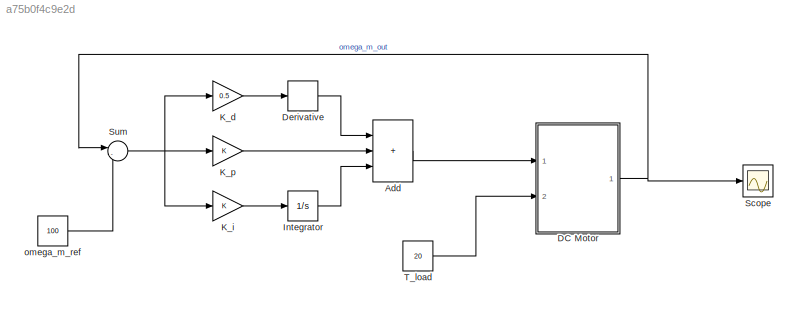
MODEL slx_a75b0f4c9e2d
KIND model
CONFIG AbsTol = auto
CONFIG EnableMultiTasking = off
CONFIG FixedStep = auto
CONFIG MaxStep = auto
CONFIG MinStep = auto
CONFIG RelTol = 1e-3
CONFIG SampleTimeConstraint = Unconstrained
CONFIG SolverName = VariableStepAuto
CONFIG StartTime = 0.0
CONFIG StopTime = 100
BLOCK [Sum] Add
  IconShape = rectangular
  Inputs = +++
  Ports = [3, 1]
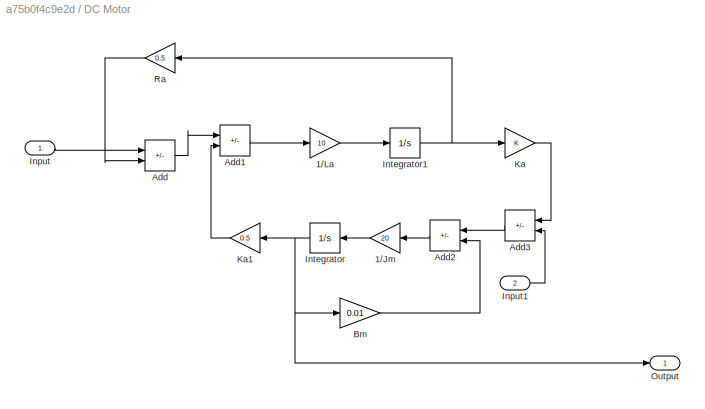
BLOCK [SubSystem] DC Motor
  Ports = [2, 1]
  RequestExecContextInheritance = off
BLOCK [Gain] DC Motor/1//Jm
  Gain = 20
  NameLocation = top
BLOCK [Gain] DC Motor/1//La
  Gain = 10
BLOCK [Sum] DC Motor/Add
  IconShape = rectangular
  Inputs = +-
  Ports = [2, 1]
BLOCK [Sum] DC Motor/Add1
  IconShape = rectangular
  Inputs = +-
  Ports = [2, 1]
BLOCK [Sum] DC Motor/Add2
  IconShape = rectangular
  Inputs = +-
  NameLocation = top
  Ports = [2, 1]
BLOCK [Sum] DC Motor/Add3
  IconShape = rectangular
  Inputs = +-
  NameLocation = top
  Ports = [2, 1]
BLOCK [Gain] DC Motor/Bm
  Gain = 0.01
BLOCK [Inport] DC Motor/Input
BLOCK [Inport] DC Motor/Input1
  Port = 2
BLOCK [Integrator] DC Motor/Integrator
  NameLocation = top
  Ports = [1, 1]
BLOCK [Integrator] DC Motor/Integrator1
  Ports = [1, 1]
BLOCK [Gain] DC Motor/Ka
BLOCK [Gain] DC Motor/Ka1
  Gain = 0.5
  NameLocation = top
BLOCK [Outport] DC Motor/Output
BLOCK [Gain] DC Motor/Ra
  Gain = 0.5
  NameLocation = top
BLOCK [Derivative] Derivative
BLOCK [Integrator] Integrator
  Ports = [1, 1]
BLOCK [Gain] K_d
  Gain = 0.5
BLOCK [Gain] K_i
BLOCK [Gain] K_p
BLOCK [Scope] Scope
  Floating = off
  NumInputPorts = 1
  Ports = [1]
  ScopeSpecificationString = Simulink.scopes.TimeScopeBlockCfg('CurrentConfiguration', extmgr.ConfigurationSet(extmgr.Configuration('Core','General UI',true),extmgr.Configuration('Core','Source UI',true),extmgr.Configuration('Sources','WiredSimulink',true),extmgr.Configuration('Visuals','Time Domain',true,'SerializedDisplays',{struct('MinYLimReal','-17.82739','MaxYLimReal','112.4199','YLabelReal','','MinYLimMag','0.00000','Ma...<+1337ch>
BLOCK [Sum] Sum
  Inputs = |-+
  Ports = [2, 1]
BLOCK [Constant] T_load
  Value = 20
BLOCK [Constant] omega_m_ref
  Value = 100
LINE Add:1 -> DC Motor:1
LINE DC Motor/1//Jm:1 -> DC Motor/Integrator:1
LINE DC Motor/1//La:1 -> DC Motor/Integrator1:1
LINE DC Motor/Add1:1 -> DC Motor/1//La:1
LINE DC Motor/Add2:1 -> DC Motor/1//Jm:1
LINE DC Motor/Add3:1 -> DC Motor/Add2:1
LINE DC Motor/Add:1 -> DC Motor/Add1:1
LINE DC Motor/Bm:1 -> DC Motor/Add2:2
LINE DC Motor/Input1:1 -> DC Motor/Add3:2
LINE DC Motor/Input:1 -> DC Motor/Add:1
NET DC Motor/Integrator1:1 -> DC Motor/Ka:1, DC Motor/Ra:1
NET DC Motor/Integrator:1 -> DC Motor/Bm:1, DC Motor/Ka1:1, DC Motor/Output:1
LINE DC Motor/Ka1:1 -> DC Motor/Add1:2
LINE DC Motor/Ka:1 -> DC Motor/Add3:1
LINE DC Motor/Ra:1 -> DC Motor/Add:2
NET DC Motor:1 -> Scope:1, Sum:1
LINE Derivative:1 -> Add:1
LINE Integrator:1 -> Add:3
LINE K_d:1 -> Derivative:1
LINE K_i:1 -> Integrator:1
LINE K_p:1 -> Add:2
NET Sum:1 -> K_d:1, K_i:1, K_p:1
LINE T_load:1 -> DC Motor:2
LINE omega_m_ref:1 -> Sum:2
note: NET lines group one-source signal fan-out (src -> all destinations, sorted); 1:1 wires keep LINE
